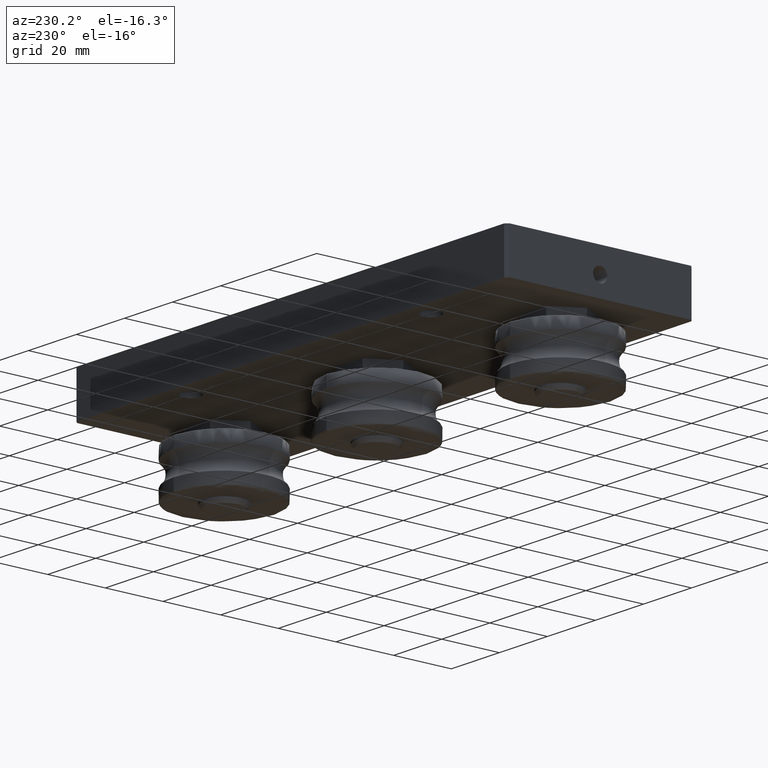
[diagram: clean part render]
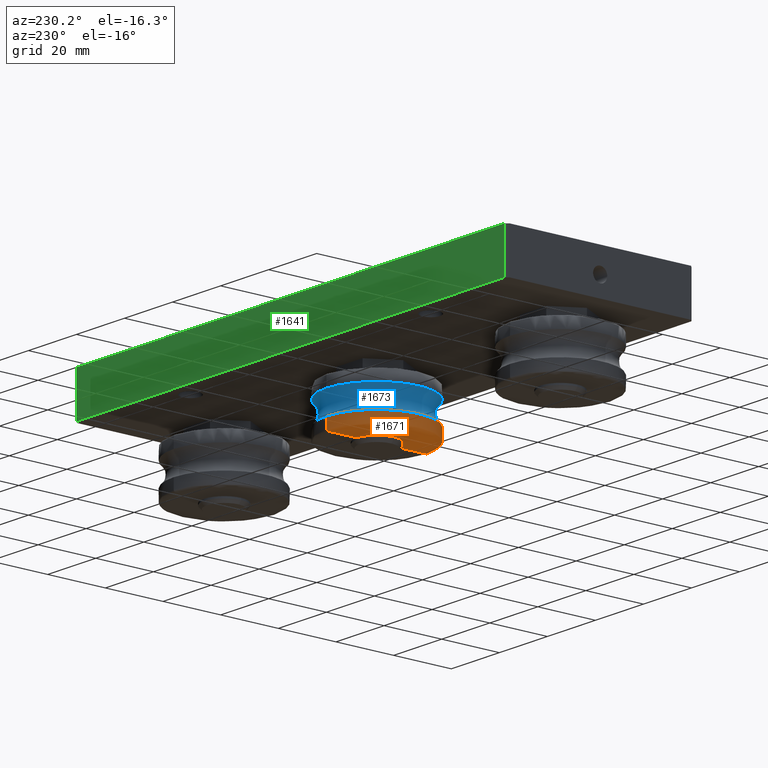
[diagram: same view with three faces highlighted in distinct colors, each labeled with its STEP entity id]
A machine part, auxiliary view with three faces highlighted in distinct colors.
Their STEP definitions:

[orange] entity #1671 — the highlighted face is a freeform B-spline surface patch.
#39=(
BOUNDED_SURFACE()
B_SPLINE_SURFACE(2,2,((#2931,#2932,#2933,#2934,#2935,#2936,#2937,#2938,
#2939),(#2940,#2941,#2942,#2943,#2944,#2945,#2946,#2947,#2948),(#2949,#2950,
#2951,#2952,#2953,#2954,#2955,#2956,#2957),(#2958,#2959,#2960,#2961,#2962,
#2963,#2964,#2965,#2966),(#2967,#2968,#2969,#2970,#2971,#2972,#2973,#2974,
#2975),(#2976,#2977,#2978,#2979,#2980,#2981,#2982,#2983,#2984),(#2985,#2986,
#2987,#2988,#2989,#2990,#2991,#2992,#2993),(#2994,#2995,#2996,#2997,#2998,
#2999,#3000,#3001,#3002),(#3003,#3004,#3005,#3006,#3007,#3008,#3009,#3010,
#3011)),.UNSPECIFIED.,.F.,.T.,.F.)
B_SPLINE_SURFACE_WITH_KNOTS((3,2,2,2,3),(3,2,2,2,3),(-15.7666360627003,
-12.1996117257709,-11.4142135623734,-1.41421356237309,-1.01152048432574),
(4.71238898038469,6.28318530717959,7.85398163397448,9.42477796076938,10.9955742875643),
 .UNSPECIFIED.)
GEOMETRIC_REPRESENTATION_ITEM()
RATIONAL_B_SPLINE_SURFACE(((1.,0.707106781186548,1.,0.707106781186548,1.,
0.707106781186548,1.,0.707106781186548,1.),(1.,0.707106781186548,1.,0.707106781186548,
1.,0.707106781186548,1.,0.707106781186548,1.),(1.,0.707106781186548,1.,
0.707106781186548,1.,0.707106781186548,1.,0.707106781186548,1.),(0.707106781186548,
0.5,0.707106781186548,0.5,0.707106781186548,0.5,0.707106781186548,0.5,0.707106781186548),
(1.,0.707106781186548,1.,0.707106781186548,1.,0.707106781186548,1.,0.707106781186548,
1.),(1.,0.707106781186548,1.,0.707106781186548,1.,0.707106781186548,1.,
0.707106781186548,1.),(1.,0.707106781186548,1.,0.707106781186548,1.,0.707106781186548,
1.,0.707106781186548,1.),(1.,0.707106781186548,1.,0.707106781186548,1.,
0.707106781186548,1.,0.707106781186548,1.),(1.,0.707106781186548,1.,0.707106781186548,
1.,0.707106781186548,1.,0.707106781186548,1.)))
REPRESENTATION_ITEM('')
SURFACE()
);
#47=B_SPLINE_CURVE_WITH_KNOTS('',3,(#2861,#2862,#2863,#2864,#2865,#2866,
#2867,#2868,#2869,#2870,#2871,#2872),.UNSPECIFIED.,.F.,.F.,(4,2,2,2,2,4),
(-3.26897548506552,-3.0029676967905,-2.72997063344604,-2.45697357010159,
-2.18397650675712,-2.16780932691567),.UNSPECIFIED.);
#49=B_SPLINE_CURVE_WITH_KNOTS('',3,(#2894,#2895,#2896,#2897,#2898,#2899,
#2900,#2901,#2902,#2903,#2904,#2905),.UNSPECIFIED.,.F.,.F.,(4,2,2,2,2,4),
(-2.16780932691567,-1.91097944341261,-1.63798238006806,-1.36498531672346,
-1.09198825337881,-1.0666380025218),.UNSPECIFIED.);
#57=(
BOUNDED_CURVE()
B_SPLINE_CURVE(2,(#3013,#3014,#3015,#3016,#3017,#3018,#3019,#3020,#3021),
 .UNSPECIFIED.,.F.,.F.)
B_SPLINE_CURVE_WITH_KNOTS((3,2,2,2,3),(-15.7666360627003,-12.1996117257709,
-11.4142135623734,-1.41421356237309,-1.40259000037039),.UNSPECIFIED.)
CURVE()
GEOMETRIC_REPRESENTATION_ITEM()
RATIONAL_B_SPLINE_CURVE((1.,1.,1.,0.707106781186548,1.,1.,1.,1.,1.))
REPRESENTATION_ITEM('')
);
#58=(
BOUNDED_CURVE()
B_SPLINE_CURVE(2,(#3024,#3025,#3026,#3027,#3028,#3029,#3030,#3031,#3032),
 .UNSPECIFIED.,.F.,.F.)
B_SPLINE_CURVE_WITH_KNOTS((3,2,2,2,3),(-15.7666360627003,-12.1996117257709,
-11.4142135623734,-1.41421356237309,-1.40259000034476),.UNSPECIFIED.)
CURVE()
GEOMETRIC_REPRESENTATION_ITEM()
RATIONAL_B_SPLINE_CURVE((1.,1.,1.,0.707106781186548,1.,1.,1.,1.,1.))
REPRESENTATION_ITEM('')
);
#249=CIRCLE('',#1983,17.4999999999999);
#352=FACE_OUTER_BOUND('',#480,.T.);
#480=EDGE_LOOP('',(#1354,#1355,#1356,#1357,#1358));
#824=VERTEX_POINT('',#2858);
#825=VERTEX_POINT('',#2860);
#826=VERTEX_POINT('',#2873);
#837=VERTEX_POINT('',#3012);
#838=VERTEX_POINT('',#3022);
#1000=EDGE_CURVE('',#825,#824,#47,.T.);
#1002=EDGE_CURVE('',#824,#826,#49,.T.);
#1014=EDGE_CURVE('',#837,#826,#57,.T.);
#1015=EDGE_CURVE('',#838,#837,#249,.T.);
#1016=EDGE_CURVE('',#838,#825,#58,.T.);
#1354=ORIENTED_EDGE('',*,*,#1000,.T.);
#1355=ORIENTED_EDGE('',*,*,#1002,.T.);
#1356=ORIENTED_EDGE('',*,*,#1014,.F.);
#1357=ORIENTED_EDGE('',*,*,#1015,.F.);
#1358=ORIENTED_EDGE('',*,*,#1016,.T.);
#1671=ADVANCED_FACE('',(#352),#39,.T.);
#1983=AXIS2_PLACEMENT_3D('',#3023,#2364,#2365);
#2364=DIRECTION('center_axis',(1.98389456597707E-15,0.,1.));
#2365=DIRECTION('ref_axis',(1.,-1.18952466924114E-14,-1.99840144432529E-15));
#2858=CARTESIAN_POINT('',(-6.98837643798399,-4.94704602990434E-13,-30.3000000001202));
#2860=CARTESIAN_POINT('',(1.14352971536391E-11,6.98837643798349,-30.3000000001203));
#2861=CARTESIAN_POINT('Ctrl Pts',(1.14233622561244E-11,6.98837643798349,
-30.3000000001203));
#2862=CARTESIAN_POINT('Ctrl Pts',(-0.886270460864579,6.98837643798494,-30.3000000001203));
#2863=CARTESIAN_POINT('Ctrl Pts',(-1.76473292514949,6.81977615158071,-30.3000000001203));
#2864=CARTESIAN_POINT('Ctrl Pts',(-3.43363534509382,6.15431846269541,-30.3000000001203));
#2865=CARTESIAN_POINT('Ctrl Pts',(-4.20499356718925,5.65539711454915,-30.3000000001203));
#2866=CARTESIAN_POINT('Ctrl Pts',(-5.51304849785565,4.38996397293266,-30.3000000001203));
#2867=CARTESIAN_POINT('Ctrl Pts',(-6.03723948834469,3.6355504100108,-30.3000000001203));
#2868=CARTESIAN_POINT('Ctrl Pts',(-6.76693824157377,1.96825665452613,-30.3000000001203));
#2869=CARTESIAN_POINT('Ctrl Pts',(-6.96546968651667,1.07131669901107,-30.3000000001203));
#2870=CARTESIAN_POINT('Ctrl Pts',(-6.98775439887023,0.107693531649332,-30.3000000001203));
#2871=CARTESIAN_POINT('Ctrl Pts',(-6.98837643798399,0.0538334289383918,
-30.3000000001203));
#2872=CARTESIAN_POINT('Ctrl Pts',(-6.98837643798399,-4.94399364262735E-13,
-30.3000000001203));
#2873=CARTESIAN_POINT('',(1.14352971536391E-11,-6.98837643798448,-30.3000000001203));
#2894=CARTESIAN_POINT('Ctrl Pts',(-6.98837643798399,-4.94326801714351E-13,
-30.3000000001203));
#2895=CARTESIAN_POINT('Ctrl Pts',(-6.98837643798399,-0.8551914074405,-30.3000000001203));
#2896=CARTESIAN_POINT('Ctrl Pts',(-6.83138958965057,-1.70365138995869,-30.3000000001203));
#2897=CARTESIAN_POINT('Ctrl Pts',(-6.19884670413739,-3.3525791507396,-30.3000000001203));
#2898=CARTESIAN_POINT('Ctrl Pts',(-5.71009052617899,-4.13041809096984,-30.3000000001203));
#2899=CARTESIAN_POINT('Ctrl Pts',(-4.46193140105499,-5.4549661406512,-30.3000000001203));
#2900=CARTESIAN_POINT('Ctrl Pts',(-3.71446153542472,-5.98901184881295,-30.3000000001203));
#2901=CARTESIAN_POINT('Ctrl Pts',(-2.05688687281581,-6.74052696870287,-30.3000000001203));
#2902=CARTESIAN_POINT('Ctrl Pts',(-1.16262939305953,-6.95081148627739,-30.3000000001203));
#2903=CARTESIAN_POINT('Ctrl Pts',(-0.168791498381565,-6.98684872173256,
-30.3000000001203));
#2904=CARTESIAN_POINT('Ctrl Pts',(-0.0843655913679018,-6.98837643798463,
-30.3000000001203));
#2905=CARTESIAN_POINT('Ctrl Pts',(1.22482398137424E-11,-6.98837643798448,
-30.3000000001203));
#2931=CARTESIAN_POINT('Ctrl Pts',(1.08304837304214E-11,17.5000000000118,
-26.232975663191));
#2932=CARTESIAN_POINT('Ctrl Pts',(-17.4999999999889,17.5000000000115,-26.232975663191));
#2933=CARTESIAN_POINT('Ctrl Pts',(-17.4999999999886,1.18516307878735E-11,
-26.232975663191));
#2934=CARTESIAN_POINT('Ctrl Pts',(-17.4999999999883,-17.4999999999878,-26.232975663191));
#2935=CARTESIAN_POINT('Ctrl Pts',(1.13578396671184E-11,-17.4999999999876,
-26.232975663191));
#2936=CARTESIAN_POINT('Ctrl Pts',(17.500000000011,-17.4999999999873,-26.2329756631909));
#2937=CARTESIAN_POINT('Ctrl Pts',(17.5000000000108,1.23789867245705E-11,
-26.2329756631909));
#2938=CARTESIAN_POINT('Ctrl Pts',(17.5000000000105,17.5000000000121,-26.2329756631909));
#2939=CARTESIAN_POINT('Ctrl Pts',(1.08304837304214E-11,17.5000000000118,
-26.232975663191));
#2940=CARTESIAN_POINT('Ctrl Pts',(1.08340220305207E-11,17.5000000000118,
-28.0164878316557));
#2941=CARTESIAN_POINT('Ctrl Pts',(-17.4999999999889,17.5000000000115,-28.0164878316557));
#2942=CARTESIAN_POINT('Ctrl Pts',(-17.4999999999886,1.18516307878735E-11,
-28.0164878316557));
#2943=CARTESIAN_POINT('Ctrl Pts',(-17.4999999999883,-17.4999999999878,-28.0164878316557));
#2944=CARTESIAN_POINT('Ctrl Pts',(1.13613779672177E-11,-17.4999999999876,
-28.0164878316557));
#2945=CARTESIAN_POINT('Ctrl Pts',(17.5000000000111,-17.4999999999873,-28.0164878316556));
#2946=CARTESIAN_POINT('Ctrl Pts',(17.5000000000108,1.23789867245705E-11,
-28.0164878316556));
#2947=CARTESIAN_POINT('Ctrl Pts',(17.5000000000105,17.5000000000121,-28.0164878316556));
#2948=CARTESIAN_POINT('Ctrl Pts',(1.08340220305207E-11,17.5000000000118,
-28.0164878316557));
#2949=CARTESIAN_POINT('Ctrl Pts',(1.08375603306201E-11,17.5000000000118,
-29.8000000001203));
#2950=CARTESIAN_POINT('Ctrl Pts',(-17.4999999999889,17.5000000000115,-29.8000000001203));
#2951=CARTESIAN_POINT('Ctrl Pts',(-17.4999999999886,1.18516307878735E-11,
-29.8000000001203));
#2952=CARTESIAN_POINT('Ctrl Pts',(-17.4999999999883,-17.4999999999878,-29.8000000001203));
#2953=CARTESIAN_POINT('Ctrl Pts',(1.13649162673171E-11,-17.4999999999876,
-29.8000000001203));
#2954=CARTESIAN_POINT('Ctrl Pts',(17.5000000000111,-17.4999999999873,-29.8000000001202));
#2955=CARTESIAN_POINT('Ctrl Pts',(17.5000000000108,1.23789867245705E-11,
-29.8000000001202));
#2956=CARTESIAN_POINT('Ctrl Pts',(17.5000000000105,17.5000000000121,-29.8000000001202));
#2957=CARTESIAN_POINT('Ctrl Pts',(1.08375603306201E-11,17.5000000000118,
-29.8000000001203));
#2958=CARTESIAN_POINT('Ctrl Pts',(1.08607457088256E-11,17.500000000012,
-30.3000000001205));
#2959=CARTESIAN_POINT('Ctrl Pts',(-17.499999999989,17.5000000000118,-30.3000000001205));
#2960=CARTESIAN_POINT('Ctrl Pts',(-17.4999999999888,1.1873824218796E-11,
-30.3000000001205));
#2961=CARTESIAN_POINT('Ctrl Pts',(-17.4999999999886,-17.499999999988,-30.3000000001205));
#2962=CARTESIAN_POINT('Ctrl Pts',(1.13437147836776E-11,-17.4999999999878,
-30.3000000001205));
#2963=CARTESIAN_POINT('Ctrl Pts',(17.5000000000112,-17.4999999999875,-30.3000000001204));
#2964=CARTESIAN_POINT('Ctrl Pts',(17.500000000011,1.2356793293648E-11,-30.3000000001204));
#2965=CARTESIAN_POINT('Ctrl Pts',(17.5000000000108,17.5000000000123,-30.3000000001204));
#2966=CARTESIAN_POINT('Ctrl Pts',(1.08607457088256E-11,17.500000000012,
-30.3000000001205));
#2967=CARTESIAN_POINT('Ctrl Pts',(1.08385522779031E-11,17.0000000000118,
-30.3000000001203));
#2968=CARTESIAN_POINT('Ctrl Pts',(-16.9999999999889,17.0000000000115,-30.3000000001203));
#2969=CARTESIAN_POINT('Ctrl Pts',(-16.9999999999886,1.18516307878735E-11,
-30.3000000001203));
#2970=CARTESIAN_POINT('Ctrl Pts',(-16.9999999999883,-16.9999999999878,-30.3000000001203));
#2971=CARTESIAN_POINT('Ctrl Pts',(1.13659082146001E-11,-16.9999999999876,
-30.3000000001203));
#2972=CARTESIAN_POINT('Ctrl Pts',(17.0000000000111,-16.9999999999873,-30.3000000001202));
#2973=CARTESIAN_POINT('Ctrl Pts',(17.0000000000108,1.23789867245705E-11,
-30.3000000001202));
#2974=CARTESIAN_POINT('Ctrl Pts',(17.0000000000105,17.0000000000121,-30.3000000001202));
#2975=CARTESIAN_POINT('Ctrl Pts',(1.08385522779031E-11,17.0000000000118,
-30.3000000001203));
#2976=CARTESIAN_POINT('Ctrl Pts',(1.08107967022875E-11,12.0000000000118,
-30.3000000001203));
#2977=CARTESIAN_POINT('Ctrl Pts',(-11.9999999999889,12.0000000000115,-30.3000000001203));
#2978=CARTESIAN_POINT('Ctrl Pts',(-11.9999999999886,1.18238752122579E-11,
-30.3000000001203));
#2979=CARTESIAN_POINT('Ctrl Pts',(-11.9999999999883,-11.9999999999879,-30.3000000001203));
#2980=CARTESIAN_POINT('Ctrl Pts',(1.13936637902157E-11,-11.9999999999876,
-30.3000000001203));
#2981=CARTESIAN_POINT('Ctrl Pts',(12.0000000000111,-11.9999999999873,-30.3000000001203));
#2982=CARTESIAN_POINT('Ctrl Pts',(12.0000000000108,1.24067423001861E-11,
-30.3000000001203));
#2983=CARTESIAN_POINT('Ctrl Pts',(12.0000000000105,12.0000000000121,-30.3000000001203));
#2984=CARTESIAN_POINT('Ctrl Pts',(1.08107967022875E-11,12.0000000000118,
-30.3000000001203));
#2985=CARTESIAN_POINT('Ctrl Pts',(1.08107967022875E-11,7.00000000001179,
-30.3000000001203));
#2986=CARTESIAN_POINT('Ctrl Pts',(-6.99999999998886,7.0000000000115,-30.3000000001203));
#2987=CARTESIAN_POINT('Ctrl Pts',(-6.99999999998857,1.18238752122579E-11,
-30.3000000001203));
#2988=CARTESIAN_POINT('Ctrl Pts',(-6.99999999998828,-6.99999999998785,-30.3000000001203));
#2989=CARTESIAN_POINT('Ctrl Pts',(1.13936637902157E-11,-6.99999999998756,
-30.3000000001203));
#2990=CARTESIAN_POINT('Ctrl Pts',(7.00000000001107,-6.99999999998727,-30.3000000001203));
#2991=CARTESIAN_POINT('Ctrl Pts',(7.00000000001078,1.24067423001861E-11,
-30.3000000001203));
#2992=CARTESIAN_POINT('Ctrl Pts',(7.00000000001048,7.00000000001208,-30.3000000001203));
#2993=CARTESIAN_POINT('Ctrl Pts',(1.08107967022875E-11,7.00000000001179,
-30.3000000001203));
#2994=CARTESIAN_POINT('Ctrl Pts',(1.08107967022875E-11,6.79865346098812,
-30.3000000001203));
#2995=CARTESIAN_POINT('Ctrl Pts',(-6.79865346096519,6.79865346098782,-30.3000000001203));
#2996=CARTESIAN_POINT('Ctrl Pts',(-6.7986534609649,1.18238752122579E-11,
-30.3000000001203));
#2997=CARTESIAN_POINT('Ctrl Pts',(-6.7986534609646,-6.79865346096418,-30.3000000001203));
#2998=CARTESIAN_POINT('Ctrl Pts',(1.13936637902157E-11,-6.79865346096389,
-30.3000000001203));
#2999=CARTESIAN_POINT('Ctrl Pts',(6.79865346098739,-6.79865346096359,-30.3000000001203));
#3000=CARTESIAN_POINT('Ctrl Pts',(6.7986534609871,1.24067423001861E-11,
-30.3000000001203));
#3001=CARTESIAN_POINT('Ctrl Pts',(6.79865346098681,6.79865346098841,-30.3000000001203));
#3002=CARTESIAN_POINT('Ctrl Pts',(1.08107967022875E-11,6.79865346098812,
-30.3000000001203));
#3003=CARTESIAN_POINT('Ctrl Pts',(1.08107967022875E-11,6.59730692196444,
-30.3000000001203));
#3004=CARTESIAN_POINT('Ctrl Pts',(-6.59730692194152,6.59730692196415,-30.3000000001203));
#3005=CARTESIAN_POINT('Ctrl Pts',(-6.59730692194123,1.18238752122579E-11,
-30.3000000001203));
#3006=CARTESIAN_POINT('Ctrl Pts',(-6.59730692194093,-6.5973069219405,-30.3000000001203));
#3007=CARTESIAN_POINT('Ctrl Pts',(1.13936637902157E-11,-6.59730692194021,
-30.3000000001203));
#3008=CARTESIAN_POINT('Ctrl Pts',(6.59730692196372,-6.59730692193992,-30.3000000001203));
#3009=CARTESIAN_POINT('Ctrl Pts',(6.59730692196343,1.24067423001861E-11,
-30.3000000001203));
#3010=CARTESIAN_POINT('Ctrl Pts',(6.59730692196314,6.59730692196473,-30.3000000001203));
#3011=CARTESIAN_POINT('Ctrl Pts',(1.08107967022875E-11,6.59730692196444,
-30.3000000001203));
#3012=CARTESIAN_POINT('',(1.14352971536391E-11,-17.4999999999879,-26.2329756631911));
#3013=CARTESIAN_POINT('Ctrl Pts',(1.14352971536391E-11,-17.4999999999877,
-26.232975663191));
#3014=CARTESIAN_POINT('Ctrl Pts',(1.14352971536391E-11,-17.4999999999877,
-28.0164878316557));
#3015=CARTESIAN_POINT('Ctrl Pts',(1.14352971536391E-11,-17.4999999999877,
-29.8000000001203));
#3016=CARTESIAN_POINT('Ctrl Pts',(1.16186841942599E-11,-17.4999999999876,
-30.3000000001205));
#3017=CARTESIAN_POINT('Ctrl Pts',(1.14352971536391E-11,-16.9999999999877,
-30.3000000001203));
#3018=CARTESIAN_POINT('Ctrl Pts',(1.14352971536391E-11,-11.9999999999876,
-30.3000000001203));
#3019=CARTESIAN_POINT('Ctrl Pts',(1.14352971536391E-11,-6.99999999998718,
-30.3000000001203));
#3020=CARTESIAN_POINT('Ctrl Pts',(1.14352971536391E-11,-6.99418821898583,
-30.3000000001203));
#3021=CARTESIAN_POINT('Ctrl Pts',(1.14352971536391E-11,-6.98837643798448,
-30.3000000001203));
#3022=CARTESIAN_POINT('',(1.14352971536391E-11,17.5000000000119,-26.232975663191));
#3023=CARTESIAN_POINT('Origin',(1.18874549109709E-11,1.2115308756222E-11,
-26.232975663191));
#3024=CARTESIAN_POINT('Ctrl Pts',(1.14352971536391E-11,17.5000000000119,
-26.232975663191));
#3025=CARTESIAN_POINT('Ctrl Pts',(1.14352971536391E-11,17.5000000000119,
-28.0164878316557));
#3026=CARTESIAN_POINT('Ctrl Pts',(1.14352971536391E-11,17.5000000000119,
-29.8000000001203));
#3027=CARTESIAN_POINT('Ctrl Pts',(1.16186841942599E-11,17.5000000000119,
-30.3000000001205));
#3028=CARTESIAN_POINT('Ctrl Pts',(1.14352971536391E-11,17.0000000000118,
-30.3000000001203));
#3029=CARTESIAN_POINT('Ctrl Pts',(1.14352971536391E-11,12.0000000000118,
-30.3000000001203));
#3030=CARTESIAN_POINT('Ctrl Pts',(1.14352971536391E-11,7.00000000001182,
-30.3000000001203));
#3031=CARTESIAN_POINT('Ctrl Pts',(1.14352971536391E-11,6.99418821899766,
-30.3000000001203));
#3032=CARTESIAN_POINT('Ctrl Pts',(1.14352971536391E-11,6.98837643798349,
-30.3000000001203));

[blue] entity #1673 — the highlighted toroidal blend (fillet) surface has major radius 20.65 mm and minor (blend) radius 5 mm.
#69=TOROIDAL_SURFACE('',#1985,20.6499999999993,5.00000000000013);
#249=CIRCLE('',#1983,17.4999999999999);
#250=CIRCLE('',#1984,17.4999999999997);
#251=CIRCLE('',#1986,5.00000000000013);
#252=CIRCLE('',#1987,17.4999999999995);
#253=CIRCLE('',#1988,17.4999999999997);
#354=FACE_OUTER_BOUND('',#482,.T.);
#482=EDGE_LOOP('',(#1363,#1364,#1365,#1366,#1367,#1368));
#837=VERTEX_POINT('',#3012);
#838=VERTEX_POINT('',#3022);
#839=VERTEX_POINT('',#3116);
#840=VERTEX_POINT('',#3118);
#1015=EDGE_CURVE('',#838,#837,#249,.T.);
#1017=EDGE_CURVE('',#838,#837,#250,.T.);
#1018=EDGE_CURVE('',#837,#839,#251,.T.);
#1019=EDGE_CURVE('',#839,#840,#252,.T.);
#1020=EDGE_CURVE('',#840,#839,#253,.T.);
#1363=ORIENTED_EDGE('',*,*,#1017,.F.);
#1364=ORIENTED_EDGE('',*,*,#1015,.T.);
#1365=ORIENTED_EDGE('',*,*,#1018,.T.);
#1366=ORIENTED_EDGE('',*,*,#1019,.T.);
#1367=ORIENTED_EDGE('',*,*,#1020,.T.);
#1368=ORIENTED_EDGE('',*,*,#1018,.F.);
#1673=ADVANCED_FACE('',(#354),#69,.F.);
#1983=AXIS2_PLACEMENT_3D('',#3023,#2364,#2365);
#1984=AXIS2_PLACEMENT_3D('',#3114,#2366,#2367);
#1985=AXIS2_PLACEMENT_3D('',#3115,#2368,#2369);
#1986=AXIS2_PLACEMENT_3D('',#3117,#2370,#2371);
#1987=AXIS2_PLACEMENT_3D('',#3119,#2372,#2373);
#1988=AXIS2_PLACEMENT_3D('',#3120,#2374,#2375);
#2364=DIRECTION('center_axis',(1.98389456597707E-15,0.,1.));
#2365=DIRECTION('ref_axis',(1.,-1.18952466924114E-14,-1.99840144432529E-15));
#2366=DIRECTION('center_axis',(0.,0.,-1.));
#2367=DIRECTION('ref_axis',(-1.,0.,0.));
#2368=DIRECTION('center_axis',(-7.93016446160787E-16,-7.9301644616079E-16,
-1.));
#2369=DIRECTION('ref_axis',(0.,1.,-8.31044135391949E-16));
#2370=DIRECTION('center_axis',(1.,-1.22464679914737E-16,-7.93016446160787E-16));
#2371=DIRECTION('ref_axis',(-1.22464679914737E-16,-1.,8.65670974366613E-16));
#2372=DIRECTION('center_axis',(2.37904933848244E-15,2.37904933848251E-15,
-1.));
#2373=DIRECTION('ref_axis',(0.,1.,2.37904933848251E-15));
#2374=DIRECTION('center_axis',(-2.37904933848236E-15,-2.37904933848237E-15,
-1.));
#2375=DIRECTION('ref_axis',(0.,1.,-2.37904933848237E-15));
#3012=CARTESIAN_POINT('',(1.14352971536391E-11,-17.4999999999879,-26.2329756631911));
#3022=CARTESIAN_POINT('',(1.14352971536391E-11,17.5000000000119,-26.232975663191));
#3023=CARTESIAN_POINT('Origin',(1.18874549109709E-11,1.2115308756222E-11,
-26.232975663191));
#3114=CARTESIAN_POINT('Origin',(1.14352971536391E-11,1.26010313294955E-11,
-26.2329756631907));
#3115=CARTESIAN_POINT('Origin',(1.14352971536391E-11,1.26010313294955E-11,
-22.3500000001204));
#3116=CARTESIAN_POINT('',(1.14352971536391E-11,-17.4999999999877,-18.4670243370494));
#3117=CARTESIAN_POINT('Origin',(1.14327682579989E-11,-20.6499999999867,
-22.3500000001204));
#3118=CARTESIAN_POINT('',(1.14352971536391E-11,17.5000000000119,-18.4670243370494));
#3119=CARTESIAN_POINT('Origin',(1.14352971536391E-11,1.14908083048704E-11,
-18.4670243370492));
#3120=CARTESIAN_POINT('Origin',(1.14352971536391E-11,1.26010313294955E-11,
-18.4670243370492));

[green] entity #1641 — the highlighted planar face has unit normal (-0, 1, 0).
#322=FACE_OUTER_BOUND('',#438,.T.);
#438=EDGE_LOOP('',(#1214,#1215,#1216,#1217));
#539=LINE('',#2621,#647);
#547=LINE('',#2652,#655);
#550=LINE('',#2658,#658);
#569=LINE('',#2733,#677);
#647=VECTOR('',#2096,10.);
#655=VECTOR('',#2124,10.);
#658=VECTOR('',#2129,10.);
#677=VECTOR('',#2220,10.);
#754=VERTEX_POINT('',#2618);
#755=VERTEX_POINT('',#2620);
#768=VERTEX_POINT('',#2650);
#769=VERTEX_POINT('',#2654);
#894=EDGE_CURVE('',#754,#755,#539,.T.);
#910=EDGE_CURVE('',#768,#754,#547,.T.);
#913=EDGE_CURVE('',#755,#769,#550,.T.);
#948=EDGE_CURVE('',#769,#768,#569,.T.);
#1214=ORIENTED_EDGE('',*,*,#910,.F.);
#1215=ORIENTED_EDGE('',*,*,#948,.F.);
#1216=ORIENTED_EDGE('',*,*,#913,.F.);
#1217=ORIENTED_EDGE('',*,*,#894,.F.);
#1573=PLANE('',#1925);
#1641=ADVANCED_FACE('',(#322),#1573,.T.);
#1925=AXIS2_PLACEMENT_3D('',#2732,#2218,#2219);
#2096=DIRECTION('',(1.,1.2335811384724E-16,0.));
#2124=DIRECTION('',(0.,0.,-1.));
#2129=DIRECTION('',(0.,0.,1.));
#2218=DIRECTION('center_axis',(-1.2335811384724E-16,1.,0.));
#2219=DIRECTION('ref_axis',(-1.,-1.2335811384724E-16,0.));
#2220=DIRECTION('',(-1.,-1.2335811384724E-16,0.));
#2618=CARTESIAN_POINT('',(-89.,32.5,-7.5));
#2620=CARTESIAN_POINT('',(89.,32.5,-7.5));
#2621=CARTESIAN_POINT('',(90.,32.5,-7.5));
#2650=CARTESIAN_POINT('',(-89.,32.5,7.5));
#2652=CARTESIAN_POINT('',(-89.,32.5,0.));
#2654=CARTESIAN_POINT('',(89.,32.5,7.5));
#2658=CARTESIAN_POINT('',(89.,32.5,0.));
#2732=CARTESIAN_POINT('Origin',(90.,32.5,0.));
#2733=CARTESIAN_POINT('',(90.,32.5,7.5));